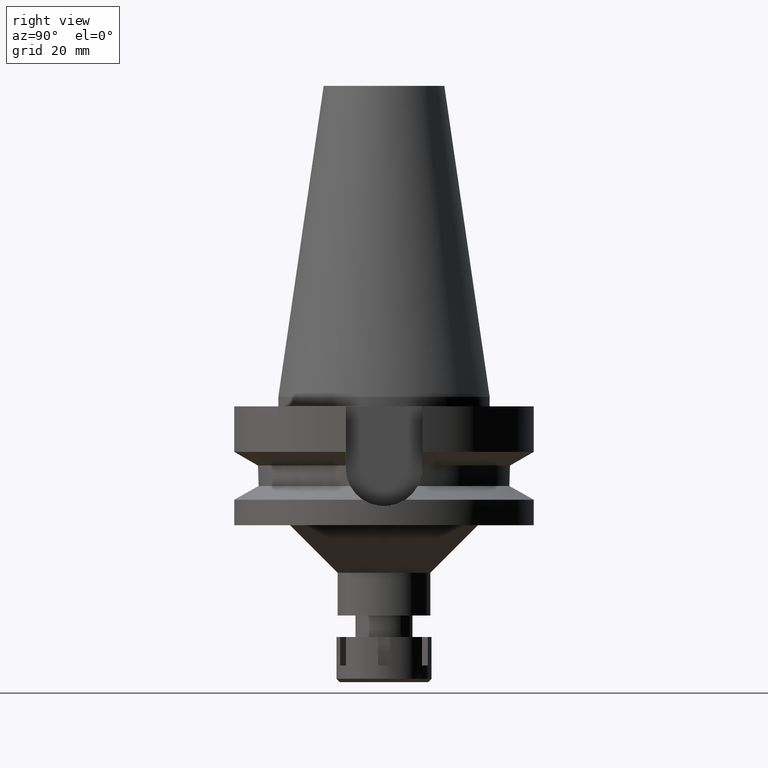
[diagram: clean part render]
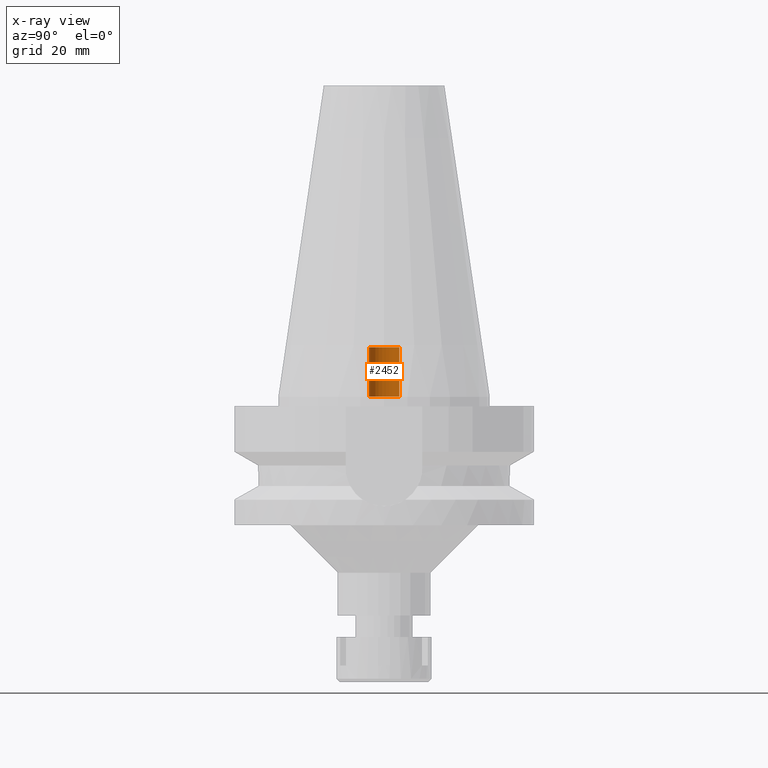
[diagram: x-ray — body ghosted, one internal face saturated and labeled with its STEP entity id]
A machine part, right view, then the same camera in x-ray: the body is ghosted and one INTERNAL B-rep face — a face not visible from any outside direction — is saturated and labeled: STEP entity #2452.
In plain terms, the highlighted cylindrical surface (edge-blend (fillet) strip) has radius 3.2 mm, axis along (0, 0, -1).
Its self-contained STEP definition (entity closure, byte-faithful):
#146 = DIRECTION ( 'NONE',  ( 0.0000000000000000000, 0.0000000000000000000, -1.000000000000000000 ) ) ;
#197 = ORIENTED_EDGE ( 'NONE', *, *, #2557, .T. ) ;
#199 = LINE ( 'NONE', #1008, #699 ) ;
#281 = DIRECTION ( 'NONE',  ( 0.0000000000000000000, 0.0000000000000000000, 1.000000000000000000 ) ) ;
#446 = CARTESIAN_POINT ( 'NONE',  ( 0.0000000000000000000, 3.200000000000000178, -5.684341886080998387E-14 ) ) ;
#478 = DIRECTION ( 'NONE',  ( 0.0000000000000000000, -1.000000000000000000, 0.0000000000000000000 ) ) ;
#699 = VECTOR ( 'NONE', #2605, 1000.000000000000000 ) ;
#719 = ORIENTED_EDGE ( 'NONE', *, *, #2652, .T. ) ;
#764 = AXIS2_PLACEMENT_3D ( 'NONE', #1844, #146, #478 ) ;
#795 = ORIENTED_EDGE ( 'NONE', *, *, #2504, .F. ) ;
#948 = VERTEX_POINT ( 'NONE', #1574 ) ;
#1008 = CARTESIAN_POINT ( 'NONE',  ( 0.0000000000000000000, 3.200000000000000178, -5.684341886080998387E-14 ) ) ;
#1167 = AXIS2_PLACEMENT_3D ( 'NONE', #1830, #3213, #2179 ) ;
#1453 = VECTOR ( 'NONE', #3386, 1000.000000000000000 ) ;
#1455 = CARTESIAN_POINT ( 'NONE',  ( 0.0000000000000000000, 2.099289543097999720E-14, 10.40000000000000036 ) ) ;
#1574 = CARTESIAN_POINT ( 'NONE',  ( 0.0000000000000000000, -3.200000000000000178, 10.40000000000000036 ) ) ;
#1621 = CIRCLE ( 'NONE', #1679, 3.200000000000000178 ) ;
#1679 = AXIS2_PLACEMENT_3D ( 'NONE', #1455, #281, #1748 ) ;
#1748 = DIRECTION ( 'NONE',  ( 0.0000000000000000000, 1.000000000000000000, 0.0000000000000000000 ) ) ;
#1753 = ORIENTED_EDGE ( 'NONE', *, *, #2696, .T. ) ;
#1830 = CARTESIAN_POINT ( 'NONE',  ( 0.0000000000000000000, 2.099289543097999720E-14, 71.42000000000000171 ) ) ;
#1844 = CARTESIAN_POINT ( 'NONE',  ( 0.0000000000000000000, 2.099289543097999720E-14, -5.684341886080998387E-14 ) ) ;
#1946 = VERTEX_POINT ( 'NONE', #3217 ) ;
#2179 = DIRECTION ( 'NONE',  ( 0.0000000000000000000, -1.000000000000000000, 0.0000000000000000000 ) ) ;
#2452 = ADVANCED_FACE ( 'NONE', ( #3233 ), #2681, .F. ) ;
#2490 = CIRCLE ( 'NONE', #764, 3.200000000000000178 ) ;
#2504 = EDGE_CURVE ( 'NONE', #2647, #948, #3133, .T. ) ;
#2557 = EDGE_CURVE ( 'NONE', #1946, #948, #1621, .T. ) ;
#2584 = CARTESIAN_POINT ( 'NONE',  ( 0.0000000000000000000, -3.200000000000000178, -5.684341886080998387E-14 ) ) ;
#2605 = DIRECTION ( 'NONE',  ( 0.0000000000000000000, 0.0000000000000000000, 1.000000000000000000 ) ) ;
#2625 = CARTESIAN_POINT ( 'NONE',  ( 0.0000000000000000000, -3.200000000000000178, -5.684341886080998387E-14 ) ) ;
#2647 = VERTEX_POINT ( 'NONE', #2625 ) ;
#2652 = EDGE_CURVE ( 'NONE', #2647, #2908, #2490, .T. ) ;
#2681 = CYLINDRICAL_SURFACE ( 'NONE', #1167, 3.200000000000000178 ) ;
#2693 = EDGE_LOOP ( 'NONE', ( #197, #795, #719, #1753 ) ) ;
#2696 = EDGE_CURVE ( 'NONE', #2908, #1946, #199, .T. ) ;
#2908 = VERTEX_POINT ( 'NONE', #446 ) ;
#3133 = LINE ( 'NONE', #2584, #1453 ) ;
#3213 = DIRECTION ( 'NONE',  ( 0.0000000000000000000, 0.0000000000000000000, -1.000000000000000000 ) ) ;
#3217 = CARTESIAN_POINT ( 'NONE',  ( 0.0000000000000000000, 3.200000000000000178, 10.40000000000000036 ) ) ;
#3233 = FACE_OUTER_BOUND ( 'NONE', #2693, .T. ) ;
#3386 = DIRECTION ( 'NONE',  ( 0.0000000000000000000, 0.0000000000000000000, 1.000000000000000000 ) ) ;